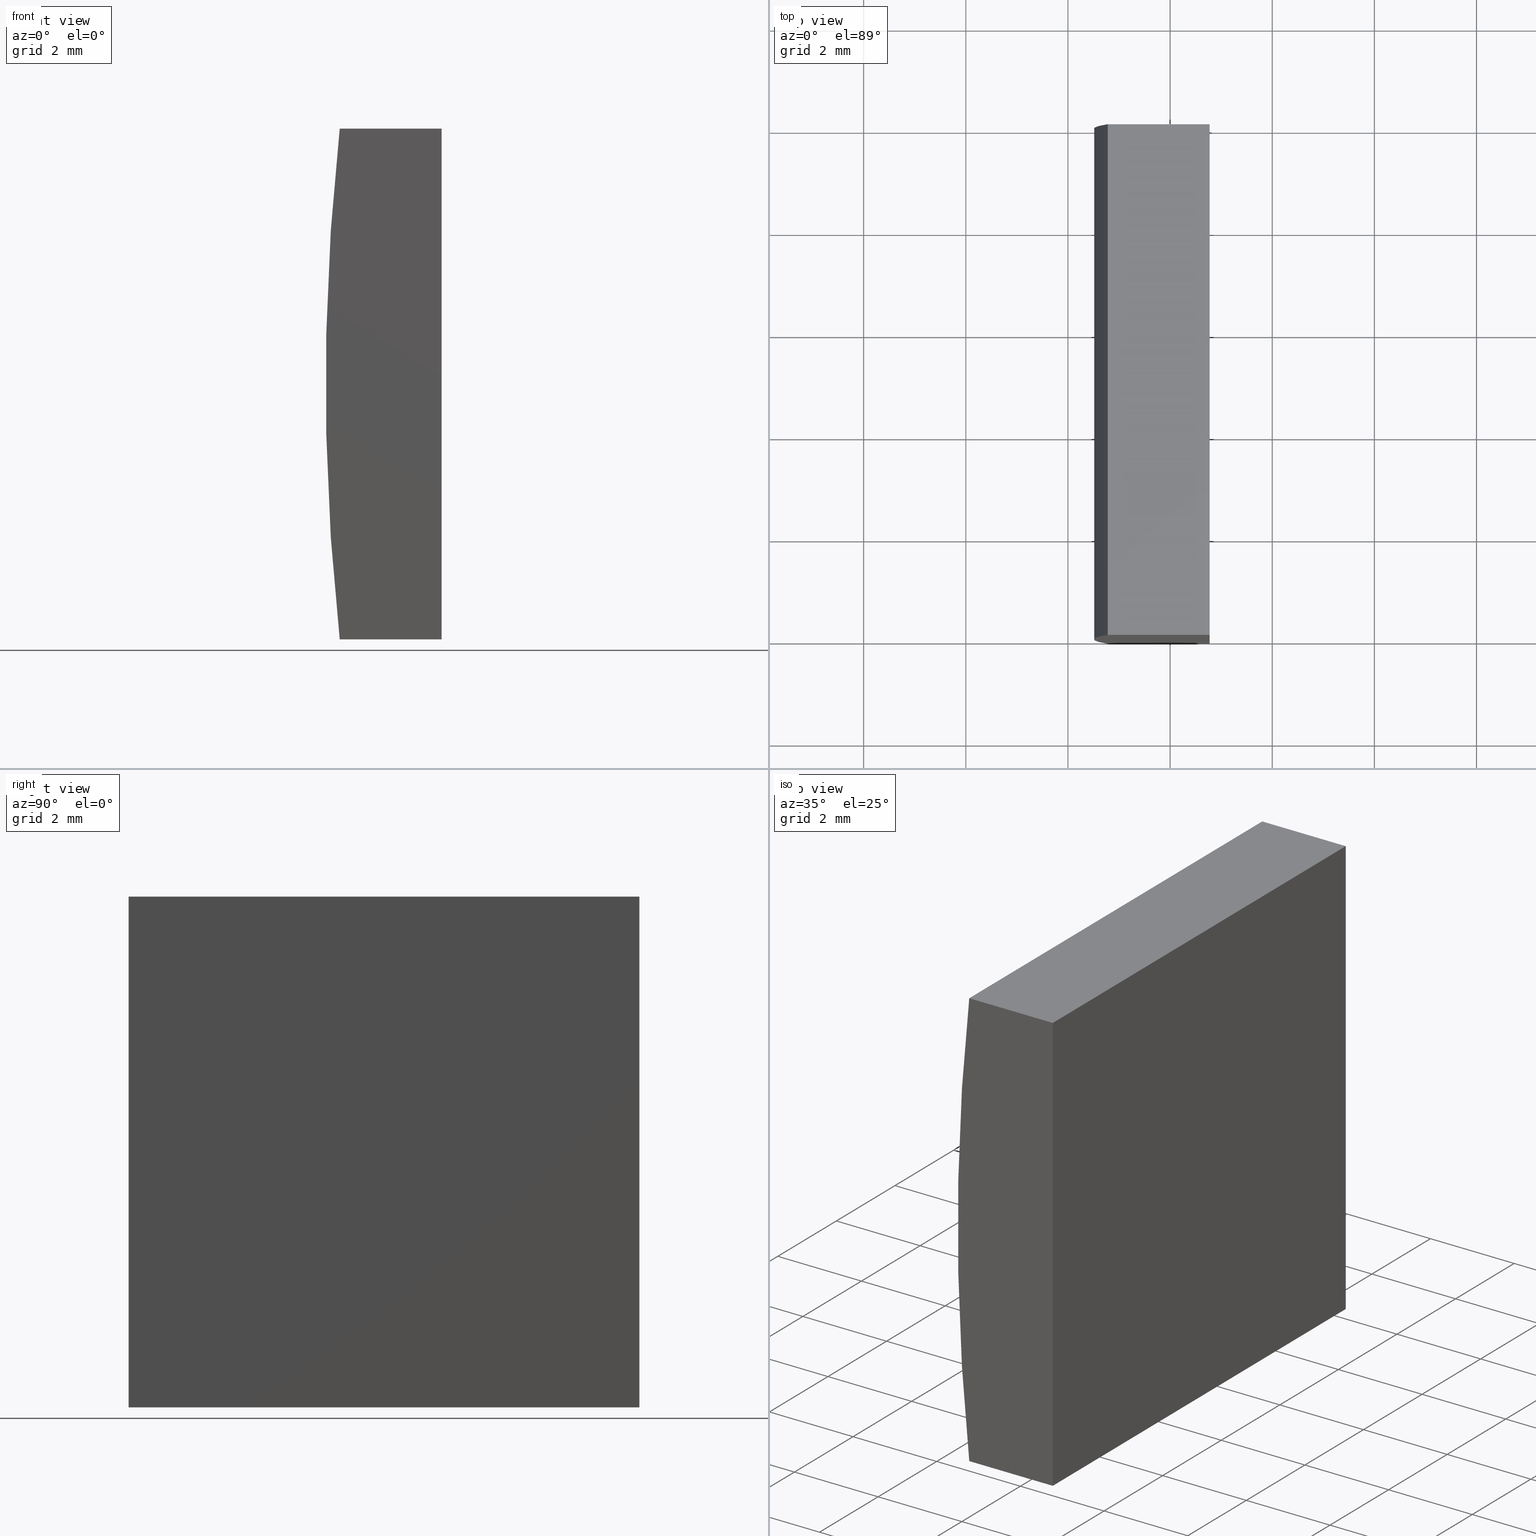
[diagram: canonical four-view strip — front | top / right | iso, engineering-drawing reading convention]
A machine part, canonical four-view strip (front | top / right | iso — engineering-drawing reading convention). The complete STEP part file that produces these views, byte-faithful:
ISO-10303-21;
HEADER;
FILE_DESCRIPTION (( 'STEP AP214' ),
    '1' );
FILE_NAME ('155270.STEP',
    '2019-06-25T05:44:58',
    ( 'user' ),
    ( '΢���й�' ),
    'SwSTEP 2.0',
    'SolidWorks 2016',
    '' );
FILE_SCHEMA (( 'AUTOMOTIVE_DESIGN' ));
ENDSEC;

DATA;
#1 = FACE_OUTER_BOUND ( 'NONE', #196, .T. ) ;
#2 = CARTESIAN_POINT ( 'NONE',  ( -41.22135213884472900, 10.00000000000000000, -5.000000000000000000 ) ) ;
#3 =( GEOMETRIC_REPRESENTATION_CONTEXT ( 3 ) GLOBAL_UNCERTAINTY_ASSIGNED_CONTEXT ( ( #108 ) ) GLOBAL_UNIT_ASSIGNED_CONTEXT ( ( #87, #47, #119 ) ) REPRESENTATION_CONTEXT ( 'NONE', 'WORKASPACE' ) );
#4 = PRODUCT_CONTEXT ( 'NONE', #28, 'mechanical' ) ;
#5 = CIRCLE ( 'NONE', #62, 45.85000000000000100 ) ;
#6 = VECTOR ( 'NONE', #182, 1000.000000000000000 ) ;
#7 = AXIS2_PLACEMENT_3D ( 'NONE', #82, #100, #86 ) ;
#8 = VERTEX_POINT ( 'NONE', #116 ) ;
#9 = EDGE_CURVE ( 'NONE', #186, #22, #109, .T. ) ;
#10 = CARTESIAN_POINT ( 'NONE',  ( 4.355204334851265500, 0.0000000000000000000, 4.286263797015675000E-017 ) ) ;
#11 = PRODUCT_DEFINITION_CONTEXT ( 'detailed design', #170, 'design' ) ;
#12 = CARTESIAN_POINT ( 'NONE',  ( -39.22479566514873300, 0.0000000000000000000, -4.999999999999994700 ) ) ;
#13 = ORIENTED_EDGE ( 'NONE', *, *, #40, .T. ) ;
#14 =( NAMED_UNIT ( * ) PLANE_ANGLE_UNIT ( ) SI_UNIT ( $, .RADIAN. ) );
#15 = ORIENTED_EDGE ( 'NONE', *, *, #40, .F. ) ;
#16 = SURFACE_SIDE_STYLE ('',( #72 ) ) ;
#17 =( GEOMETRIC_REPRESENTATION_CONTEXT ( 3 ) GLOBAL_UNCERTAINTY_ASSIGNED_CONTEXT ( ( #150 ) ) GLOBAL_UNIT_ASSIGNED_CONTEXT ( ( #33, #185, #50 ) ) REPRESENTATION_CONTEXT ( 'NONE', 'WORKASPACE' ) );
#18 = DIRECTION ( 'NONE',  ( 0.0000000000000000000, 0.0000000000000000000, 1.000000000000000000 ) ) ;
#19 = EDGE_LOOP ( 'NONE', ( #24, #93, #83, #112 ) ) ;
#20 = CARTESIAN_POINT ( 'NONE',  ( -41.22135213884472900, 10.00000000000000000, 5.000000000000000000 ) ) ;
#21 = ADVANCED_FACE ( 'NONE', ( #1 ), #98, .T. ) ;
#22 = VERTEX_POINT ( 'NONE', #113 ) ;
#23 = LINE ( 'NONE', #20, #71 ) ;
#24 = ORIENTED_EDGE ( 'NONE', *, *, #121, .F. ) ;
#25 = AXIS2_PLACEMENT_3D ( 'NONE', #126, #147, #44 ) ;
#26 = CARTESIAN_POINT ( 'NONE',  ( -41.22135213884472900, 10.00000000000000000, -5.000000000000000000 ) ) ;
#27 = DIRECTION ( 'NONE',  ( -2.606573115508492500E-015, 0.0000000000000000000, 1.000000000000000000 ) ) ;
#28 = APPLICATION_CONTEXT ( 'automotive_design' ) ;
#29 = ORIENTED_EDGE ( 'NONE', *, *, #121, .T. ) ;
#30 = ORIENTED_EDGE ( 'NONE', *, *, #156, .F. ) ;
#31 = CARTESIAN_POINT ( 'NONE',  ( -39.22479566514873300, 10.00000000000000000, 5.000000000000000000 ) ) ;
#32 = AXIS2_PLACEMENT_3D ( 'NONE', #152, #155, #63 ) ;
#33 =( LENGTH_UNIT ( ) NAMED_UNIT ( * ) SI_UNIT ( .MILLI., .METRE. ) );
#34 = CARTESIAN_POINT ( 'NONE',  ( 4.355204334851265500, 0.0000000000000000000, 4.286263797015675000E-017 ) ) ;
#35 = FACE_OUTER_BOUND ( 'NONE', #92, .T. ) ;
#36 = ADVANCED_FACE ( 'NONE', ( #188 ), #194, .T. ) ;
#37 = AXIS2_PLACEMENT_3D ( 'NONE', #142, #168, #18 ) ;
#38 = EDGE_CURVE ( 'NONE', #102, #22, #49, .T. ) ;
#39 = VERTEX_POINT ( 'NONE', #187 ) ;
#40 = EDGE_CURVE ( 'NONE', #127, #39, #105, .T. ) ;
#41 = VECTOR ( 'NONE', #180, 1000.000000000000000 ) ;
#42 = FILL_AREA_STYLE ('',( #95 ) ) ;
#43 = PRODUCT_DEFINITION ( 'δ֪', '', #58, #11 ) ;
#44 = DIRECTION ( 'NONE',  ( -1.000000000000000000, 0.0000000000000000000, -0.0000000000000000000 ) ) ;
#45 = SURFACE_STYLE_FILL_AREA ( #48 ) ;
#46 = ADVANCED_BREP_SHAPE_REPRESENTATION ( '155270', ( #133, #32 ), #17 ) ;
#47 =( NAMED_UNIT ( * ) PLANE_ANGLE_UNIT ( ) SI_UNIT ( $, .RADIAN. ) );
#48 = FILL_AREA_STYLE ('',( #118 ) ) ;
#49 = LINE ( 'NONE', #130, #135 ) ;
#50 =( NAMED_UNIT ( * ) SI_UNIT ( $, .STERADIAN. ) SOLID_ANGLE_UNIT ( ) );
#51 = ORIENTED_EDGE ( 'NONE', *, *, #156, .T. ) ;
#52 = AXIS2_PLACEMENT_3D ( 'NONE', #179, #153, #164 ) ;
#53 = PLANE ( 'NONE',  #145 ) ;
#54 = ADVANCED_FACE ( 'NONE', ( #158 ), #177, .F. ) ;
#55 = ADVANCED_FACE ( 'NONE', ( #122 ), #148, .F. ) ;
#56 = EDGE_CURVE ( 'NONE', #186, #8, #141, .T. ) ;
#57 = ORIENTED_EDGE ( 'NONE', *, *, #65, .T. ) ;
#58 = PRODUCT_DEFINITION_FORMATION_WITH_SPECIFIED_SOURCE ( '�κ�', '', #75, .NOT_KNOWN. ) ;
#59 = ORIENTED_EDGE ( 'NONE', *, *, #65, .F. ) ;
#60 = DIRECTION ( 'NONE',  ( 0.0000000000000000000, 1.000000000000000000, 0.0000000000000000000 ) ) ;
#61 = ORIENTED_EDGE ( 'NONE', *, *, #166, .T. ) ;
#62 = AXIS2_PLACEMENT_3D ( 'NONE', #10, #60, #77 ) ;
#63 = DIRECTION ( 'NONE',  ( 1.000000000000000000, 0.0000000000000000000, 0.0000000000000000000 ) ) ;
#64 = UNCERTAINTY_MEASURE_WITH_UNIT (LENGTH_MEASURE( 1.000000000000000100E-005 ), #134, 'distance_accuracy_value', 'NONE');
#65 = EDGE_CURVE ( 'NONE', #39, #186, #202, .T. ) ;
#66 = ORIENTED_EDGE ( 'NONE', *, *, #76, .T. ) ;
#67 = LINE ( 'NONE', #120, #79 ) ;
#68 = DIRECTION ( 'NONE',  ( -0.0000000000000000000, -1.000000000000000000, -0.0000000000000000000 ) ) ;
#69 = PRODUCT_RELATED_PRODUCT_CATEGORY ( 'part', '', ( #75 ) ) ;
#70 = DIRECTION ( 'NONE',  ( 0.0000000000000000000, -0.0000000000000000000, 1.000000000000000000 ) ) ;
#71 = VECTOR ( 'NONE', #163, 1000.000000000000000 ) ;
#72 = SURFACE_STYLE_FILL_AREA ( #42 ) ;
#73 = STYLED_ITEM ( 'NONE', ( #89 ), #133 ) ;
#74 = VECTOR ( 'NONE', #131, 1000.000000000000000 ) ;
#75 = PRODUCT ( '155270', '155270', '', ( #4 ) ) ;
#76 = EDGE_CURVE ( 'NONE', #8, #111, #23, .T. ) ;
#77 = DIRECTION ( 'NONE',  ( 0.0000000000000000000, 0.0000000000000000000, 1.000000000000000000 ) ) ;
#78 = ORIENTED_EDGE ( 'NONE', *, *, #157, .F. ) ;
#79 = VECTOR ( 'NONE', #81, 1000.000000000000000 ) ;
#80 = DIRECTION ( 'NONE',  ( 0.0000000000000000000, 0.0000000000000000000, -1.000000000000000000 ) ) ;
#81 = DIRECTION ( 'NONE',  ( 1.000000000000000000, 0.0000000000000000000, 0.0000000000000000000 ) ) ;
#82 = CARTESIAN_POINT ( 'NONE',  ( 4.355204334851265500, 10.00000000000000000, 4.286263797015675000E-017 ) ) ;
#83 = ORIENTED_EDGE ( 'NONE', *, *, #138, .F. ) ;
#84 = DIRECTION ( 'NONE',  ( 1.000000000000000000, 0.0000000000000000000, 2.606573115508492500E-015 ) ) ;
#85 = LINE ( 'NONE', #96, #94 ) ;
#86 = DIRECTION ( 'NONE',  ( 0.0000000000000000000, -0.0000000000000000000, 1.000000000000000000 ) ) ;
#87 =( LENGTH_UNIT ( ) NAMED_UNIT ( * ) SI_UNIT ( .MILLI., .METRE. ) );
#88 = PRESENTATION_LAYER_ASSIGNMENT (  '', '', ( #73 ) ) ;
#89 = PRESENTATION_STYLE_ASSIGNMENT (( #167 ) ) ;
#90 = LINE ( 'NONE', #151, #159 ) ;
#91 = EDGE_LOOP ( 'NONE', ( #117, #78, #15, #51 ) ) ;
#92 = EDGE_LOOP ( 'NONE', ( #176, #154, #59, #181 ) ) ;
#93 = ORIENTED_EDGE ( 'NONE', *, *, #38, .F. ) ;
#94 = VECTOR ( 'NONE', #68, 1000.000000000000000 ) ;
#95 = FILL_AREA_STYLE_COLOUR ( '', #172 ) ;
#96 = CARTESIAN_POINT ( 'NONE',  ( -39.22479566514873300, 10.00000000000000000, 5.000000000000000000 ) ) ;
#97 = CARTESIAN_POINT ( 'NONE',  ( -41.22135213884472900, 10.00000000000000000, -5.000000000000000000 ) ) ;
#98 = CYLINDRICAL_SURFACE ( 'NONE', #197, 45.85000000000000100 ) ;
#99 = MECHANICAL_DESIGN_GEOMETRIC_PRESENTATION_REPRESENTATION (  '', ( #73 ), #110 ) ;
#100 = DIRECTION ( 'NONE',  ( 0.0000000000000000000, 1.000000000000000000, 0.0000000000000000000 ) ) ;
#101 = DIRECTION ( 'NONE',  ( -1.000000000000000000, -0.0000000000000000000, -2.606573115508492500E-015 ) ) ;
#102 = VERTEX_POINT ( 'NONE', #129 ) ;
#103 = CARTESIAN_POINT ( 'NONE',  ( -39.22479566514873300, 0.0000000000000000000, 5.000000000000000000 ) ) ;
#104 = DIRECTION ( 'NONE',  ( -0.0000000000000000000, -1.000000000000000000, -0.0000000000000000000 ) ) ;
#105 = LINE ( 'NONE', #190, #41 ) ;
#106 = SURFACE_SIDE_STYLE ('',( #45 ) ) ;
#107 = LINE ( 'NONE', #12, #137 ) ;
#108 = UNCERTAINTY_MEASURE_WITH_UNIT (LENGTH_MEASURE( 1.000000000000000100E-005 ), #87, 'distance_accuracy_value', 'NONE');
#109 = LINE ( 'NONE', #2, #149 ) ;
#110 =( GEOMETRIC_REPRESENTATION_CONTEXT ( 3 ) GLOBAL_UNCERTAINTY_ASSIGNED_CONTEXT ( ( #64 ) ) GLOBAL_UNIT_ASSIGNED_CONTEXT ( ( #134, #14, #160 ) ) REPRESENTATION_CONTEXT ( 'NONE', 'WORKASPACE' ) );
#111 = VERTEX_POINT ( 'NONE', #203 ) ;
#112 = ORIENTED_EDGE ( 'NONE', *, *, #166, .F. ) ;
#113 = CARTESIAN_POINT ( 'NONE',  ( -41.22135213884472900, 0.0000000000000000000, -5.000000000000000000 ) ) ;
#114 = CLOSED_SHELL ( 'NONE', ( #21, #54, #55, #198, #36, #174 ) ) ;
#115 = CARTESIAN_POINT ( 'NONE',  ( -41.22135213884472900, 10.00000000000000000, -5.000000000000000000 ) ) ;
#116 = CARTESIAN_POINT ( 'NONE',  ( -41.22135213884472900, 10.00000000000000000, 5.000000000000000000 ) ) ;
#117 = ORIENTED_EDGE ( 'NONE', *, *, #138, .T. ) ;
#118 = FILL_AREA_STYLE_COLOUR ( '', #192 ) ;
#119 =( NAMED_UNIT ( * ) SI_UNIT ( $, .STERADIAN. ) SOLID_ANGLE_UNIT ( ) );
#120 = CARTESIAN_POINT ( 'NONE',  ( -41.22135213884472900, 0.0000000000000000000, 5.000000000000000000 ) ) ;
#121 = EDGE_CURVE ( 'NONE', #22, #111, #5, .T. ) ;
#122 = FACE_OUTER_BOUND ( 'NONE', #91, .T. ) ;
#123 = SHAPE_DEFINITION_REPRESENTATION ( #125, #46 ) ;
#124 = ORIENTED_EDGE ( 'NONE', *, *, #76, .F. ) ;
#125 = PRODUCT_DEFINITION_SHAPE ( 'NONE', 'NONE',  #43 ) ;
#126 = CARTESIAN_POINT ( 'NONE',  ( -41.22135213884472900, 10.00000000000000000, 5.000000000000000000 ) ) ;
#127 = VERTEX_POINT ( 'NONE', #31 ) ;
#128 = FACE_OUTER_BOUND ( 'NONE', #19, .T. ) ;
#129 = CARTESIAN_POINT ( 'NONE',  ( -39.22479566514873300, 0.0000000000000000000, -4.999999999999994700 ) ) ;
#130 = CARTESIAN_POINT ( 'NONE',  ( -41.22135213884472900, 0.0000000000000000000, -5.000000000000000000 ) ) ;
#131 = DIRECTION ( 'NONE',  ( -1.000000000000000000, -0.0000000000000000000, -2.606573115508492500E-015 ) ) ;
#132 = PLANE ( 'NONE',  #162 ) ;
#133 = MANIFOLD_SOLID_BREP ( '͹̨-����1', #114 ) ;
#134 =( LENGTH_UNIT ( ) NAMED_UNIT ( * ) SI_UNIT ( .MILLI., .METRE. ) );
#135 = VECTOR ( 'NONE', #101, 1000.000000000000000 ) ;
#136 = DIRECTION ( 'NONE',  ( -0.0000000000000000000, -1.000000000000000000, -0.0000000000000000000 ) ) ;
#137 = VECTOR ( 'NONE', #204, 1000.000000000000000 ) ;
#138 = EDGE_CURVE ( 'NONE', #199, #102, #107, .T. ) ;
#139 = DIRECTION ( 'NONE',  ( -0.0000000000000000000, -1.000000000000000000, -0.0000000000000000000 ) ) ;
#140 = APPLICATION_PROTOCOL_DEFINITION ( 'draft international standard', 'automotive_design', 1998, #170 ) ;
#141 = CIRCLE ( 'NONE', #37, 45.85000000000000100 ) ;
#142 = CARTESIAN_POINT ( 'NONE',  ( 4.355204334851265500, 10.00000000000000000, 4.286263797015675000E-017 ) ) ;
#143 = ORIENTED_EDGE ( 'NONE', *, *, #56, .F. ) ;
#144 = PRESENTATION_STYLE_ASSIGNMENT (( #193 ) ) ;
#145 = AXIS2_PLACEMENT_3D ( 'NONE', #34, #171, #70 ) ;
#146 = EDGE_CURVE ( 'NONE', #8, #127, #173, .T. ) ;
#147 = DIRECTION ( 'NONE',  ( 0.0000000000000000000, 0.0000000000000000000, -1.000000000000000000 ) ) ;
#148 = PLANE ( 'NONE',  #52 ) ;
#149 = VECTOR ( 'NONE', #136, 1000.000000000000000 ) ;
#150 = UNCERTAINTY_MEASURE_WITH_UNIT (LENGTH_MEASURE( 1.000000000000000100E-005 ), #33, 'distance_accuracy_value', 'NONE');
#151 = CARTESIAN_POINT ( 'NONE',  ( -39.22479566514873300, 10.00000000000000000, -4.999999999999994700 ) ) ;
#152 = CARTESIAN_POINT ( 'NONE',  ( 0.0000000000000000000, 0.0000000000000000000, 0.0000000000000000000 ) ) ;
#153 = DIRECTION ( 'NONE',  ( -1.000000000000000000, 0.0000000000000000000, 0.0000000000000000000 ) ) ;
#154 = ORIENTED_EDGE ( 'NONE', *, *, #9, .F. ) ;
#155 = DIRECTION ( 'NONE',  ( 0.0000000000000000000, 0.0000000000000000000, 1.000000000000000000 ) ) ;
#156 = EDGE_CURVE ( 'NONE', #127, #199, #85, .T. ) ;
#157 = EDGE_CURVE ( 'NONE', #39, #102, #90, .T. ) ;
#158 = FACE_OUTER_BOUND ( 'NONE', #161, .T. ) ;
#159 = VECTOR ( 'NONE', #139, 1000.000000000000000 ) ;
#160 =( NAMED_UNIT ( * ) SI_UNIT ( $, .STERADIAN. ) SOLID_ANGLE_UNIT ( ) );
#161 = EDGE_LOOP ( 'NONE', ( #61, #30, #178, #66 ) ) ;
#162 = AXIS2_PLACEMENT_3D ( 'NONE', #97, #27, #84 ) ;
#163 = DIRECTION ( 'NONE',  ( -0.0000000000000000000, -1.000000000000000000, -0.0000000000000000000 ) ) ;
#164 = DIRECTION ( 'NONE',  ( 0.0000000000000000000, 0.0000000000000000000, 1.000000000000000000 ) ) ;
#165 = CARTESIAN_POINT ( 'NONE',  ( -41.22135213884472900, 10.00000000000000000, 5.000000000000000000 ) ) ;
#166 = EDGE_CURVE ( 'NONE', #111, #199, #67, .T. ) ;
#167 = SURFACE_STYLE_USAGE ( .BOTH. , #16 ) ;
#168 = DIRECTION ( 'NONE',  ( 0.0000000000000000000, 1.000000000000000000, 0.0000000000000000000 ) ) ;
#169 = ORIENTED_EDGE ( 'NONE', *, *, #9, .T. ) ;
#170 = APPLICATION_CONTEXT ( 'automotive_design' ) ;
#171 = DIRECTION ( 'NONE',  ( 0.0000000000000000000, 1.000000000000000000, 0.0000000000000000000 ) ) ;
#172 = COLOUR_RGB ( '',1.000000000000000000, 1.000000000000000000, 1.000000000000000000 ) ;
#173 = LINE ( 'NONE', #165, #6 ) ;
#174 = ADVANCED_FACE ( 'NONE', ( #128 ), #53, .F. ) ;
#175 = ORIENTED_EDGE ( 'NONE', *, *, #56, .T. ) ;
#176 = ORIENTED_EDGE ( 'NONE', *, *, #38, .T. ) ;
#177 = PLANE ( 'NONE',  #25 ) ;
#178 = ORIENTED_EDGE ( 'NONE', *, *, #146, .F. ) ;
#179 = CARTESIAN_POINT ( 'NONE',  ( -39.22479566514873300, 10.00000000000000000, -4.999999999999994700 ) ) ;
#180 = DIRECTION ( 'NONE',  ( -0.0000000000000000000, -0.0000000000000000000, -1.000000000000000000 ) ) ;
#181 = ORIENTED_EDGE ( 'NONE', *, *, #157, .T. ) ;
#182 = DIRECTION ( 'NONE',  ( 1.000000000000000000, 0.0000000000000000000, 0.0000000000000000000 ) ) ;
#183 = APPLICATION_PROTOCOL_DEFINITION ( 'draft international standard', 'automotive_design', 1998, #28 ) ;
#184 = STYLED_ITEM ( 'NONE', ( #144 ), #46 ) ;
#185 =( NAMED_UNIT ( * ) PLANE_ANGLE_UNIT ( ) SI_UNIT ( $, .RADIAN. ) );
#186 = VERTEX_POINT ( 'NONE', #115 ) ;
#187 = CARTESIAN_POINT ( 'NONE',  ( -39.22479566514873300, 10.00000000000000000, -4.999999999999994700 ) ) ;
#188 = FACE_OUTER_BOUND ( 'NONE', #200, .T. ) ;
#189 = CARTESIAN_POINT ( 'NONE',  ( 4.355204334851265500, 10.00000000000000000, 4.286263797015675000E-017 ) ) ;
#190 = CARTESIAN_POINT ( 'NONE',  ( -39.22479566514873300, 10.00000000000000000, -4.999999999999994700 ) ) ;
#191 = PRESENTATION_LAYER_ASSIGNMENT (  '', '', ( #184 ) ) ;
#192 = COLOUR_RGB ( '',1.000000000000000000, 1.000000000000000000, 1.000000000000000000 ) ;
#193 = SURFACE_STYLE_USAGE ( .BOTH. , #106 ) ;
#194 = PLANE ( 'NONE',  #7 ) ;
#195 = ORIENTED_EDGE ( 'NONE', *, *, #146, .T. ) ;
#196 = EDGE_LOOP ( 'NONE', ( #29, #124, #143, #169 ) ) ;
#197 = AXIS2_PLACEMENT_3D ( 'NONE', #189, #104, #80 ) ;
#198 = ADVANCED_FACE ( 'NONE', ( #35 ), #132, .F. ) ;
#199 = VERTEX_POINT ( 'NONE', #103 ) ;
#200 = EDGE_LOOP ( 'NONE', ( #175, #195, #13, #57 ) ) ;
#201 = MECHANICAL_DESIGN_GEOMETRIC_PRESENTATION_REPRESENTATION (  '', ( #184 ), #3 ) ;
#202 = LINE ( 'NONE', #26, #74 ) ;
#203 = CARTESIAN_POINT ( 'NONE',  ( -41.22135213884472900, 0.0000000000000000000, 5.000000000000000000 ) ) ;
#204 = DIRECTION ( 'NONE',  ( -0.0000000000000000000, -0.0000000000000000000, -1.000000000000000000 ) ) ;
ENDSEC;
END-ISO-10303-21;
